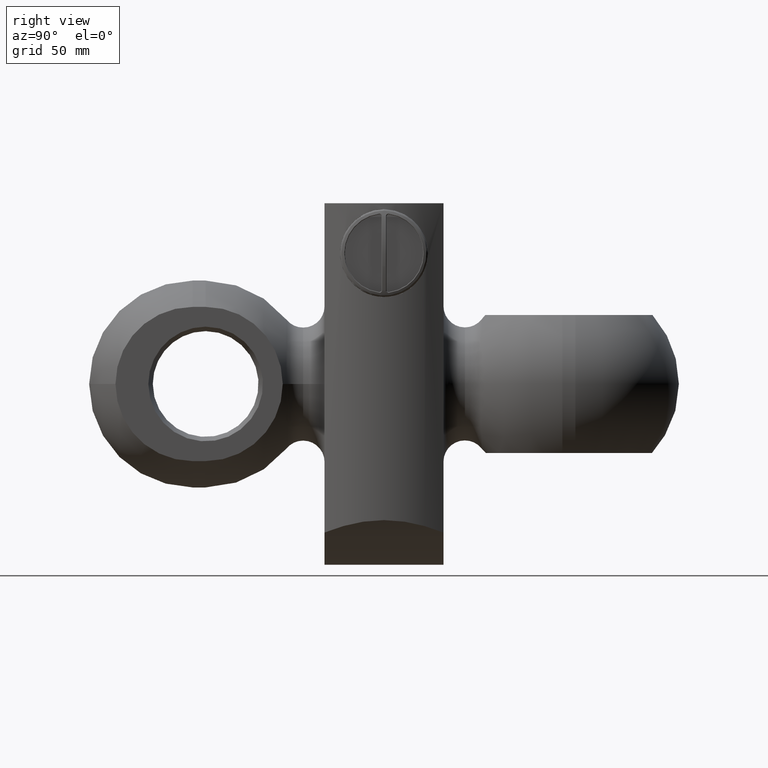
[diagram: clean part render]
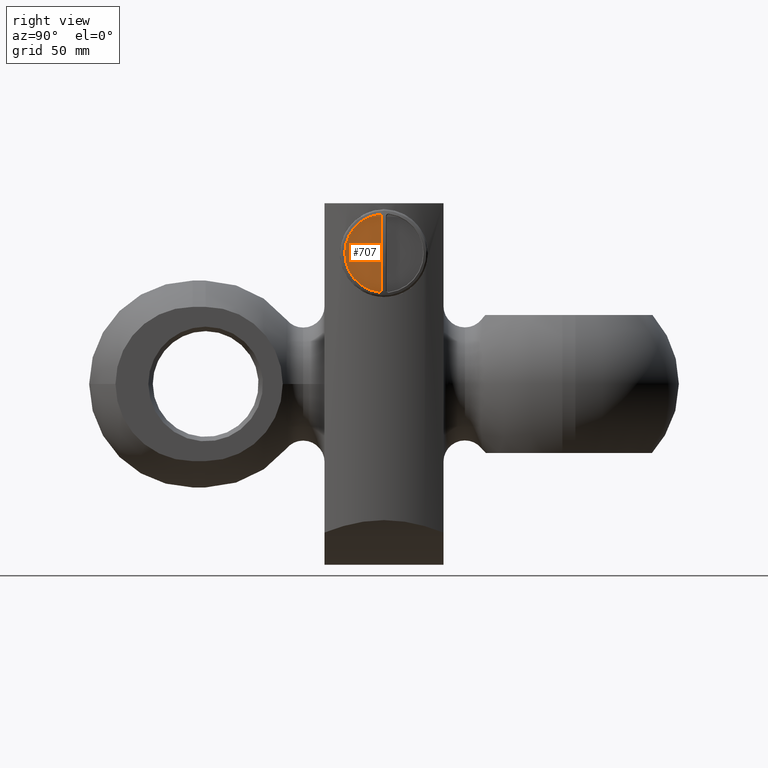
[diagram: same view with one face highlighted and labeled with its STEP entity id]
A machine part, right view. The second image highlights one B-rep face of the part: STEP entity #707.
In plain terms, the highlighted planar face has unit normal (1, -0, 0).
Its self-contained STEP definition (entity closure, byte-faithful):
#67=PLANE('',#815);
#99=FACE_OUTER_BOUND('',#145,.T.);
#145=EDGE_LOOP('',(#576,#577,#578,#579));
#194=LINE('',#1506,#218);
#218=VECTOR('',#991,10.);
#240=CIRCLE('',#788,1.);
#241=CIRCLE('',#790,16.5);
#255=CIRCLE('',#814,0.999999999999999);
#312=VERTEX_POINT('',#1364);
#313=VERTEX_POINT('',#1366);
#314=VERTEX_POINT('',#1370);
#329=VERTEX_POINT('',#1505);
#391=EDGE_CURVE('',#313,#312,#240,.T.);
#394=EDGE_CURVE('',#312,#314,#241,.T.);
#417=EDGE_CURVE('',#313,#329,#194,.T.);
#419=EDGE_CURVE('',#314,#329,#255,.T.);
#576=ORIENTED_EDGE('',*,*,#391,.T.);
#577=ORIENTED_EDGE('',*,*,#394,.T.);
#578=ORIENTED_EDGE('',*,*,#419,.T.);
#579=ORIENTED_EDGE('',*,*,#417,.F.);
#707=ADVANCED_FACE('',(#99),#67,.T.);
#788=AXIS2_PLACEMENT_3D('',#1367,#934,#935);
#790=AXIS2_PLACEMENT_3D('',#1372,#940,#941);
#814=AXIS2_PLACEMENT_3D('',#1509,#995,#996);
#815=AXIS2_PLACEMENT_3D('',#1510,#997,#998);
#934=DIRECTION('center_axis',(0.,1.,0.));
#935=DIRECTION('ref_axis',(-1.,0.,0.));
#940=DIRECTION('center_axis',(0.,1.,0.));
#941=DIRECTION('ref_axis',(0.129032258064516,0.,0.991640396705767));
#991=DIRECTION('',(0.,0.,-1.));
#995=DIRECTION('center_axis',(0.,1.,0.));
#996=DIRECTION('ref_axis',(0.129032258064518,0.,-0.991640396705767));
#997=DIRECTION('center_axis',(0.,1.,0.));
#998=DIRECTION('ref_axis',(1.,0.,0.));
#1364=CARTESIAN_POINT('',(2.12903225806452,11.,16.3620665456452));
#1366=CARTESIAN_POINT('',(1.,11.,15.3704261489394));
#1367=CARTESIAN_POINT('Origin',(2.,11.,15.3704261489394));
#1370=CARTESIAN_POINT('',(2.12903225806452,11.,-16.3620665456452));
#1372=CARTESIAN_POINT('Origin',(0.,11.,0.));
#1505=CARTESIAN_POINT('',(1.,11.,-15.3704261489394));
#1506=CARTESIAN_POINT('',(1.,11.,15.3704261489394));
#1509=CARTESIAN_POINT('Origin',(2.,11.,-15.3704261489394));
#1510=CARTESIAN_POINT('Origin',(8.75,11.,0.));